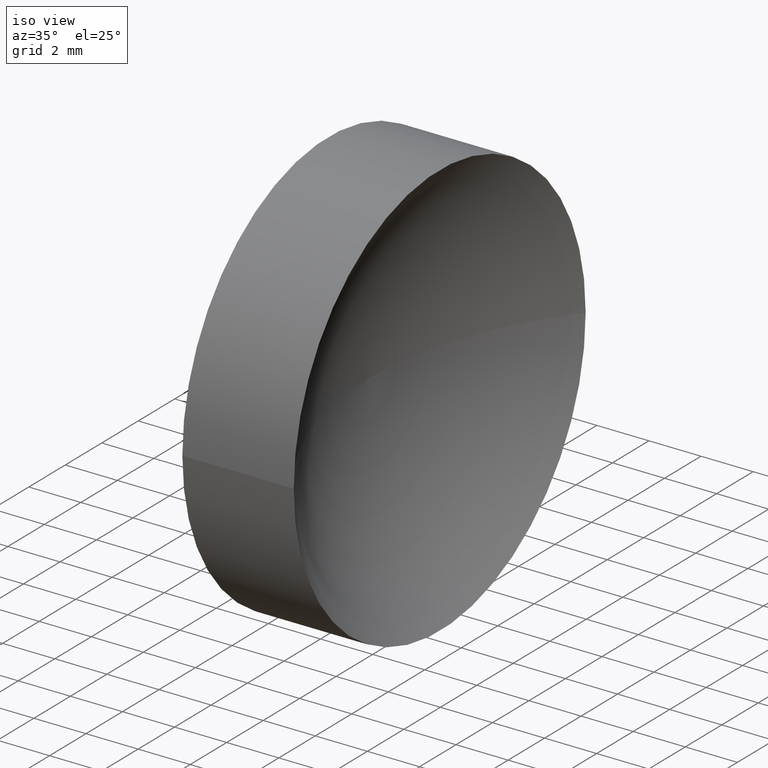
[diagram: clean part render]
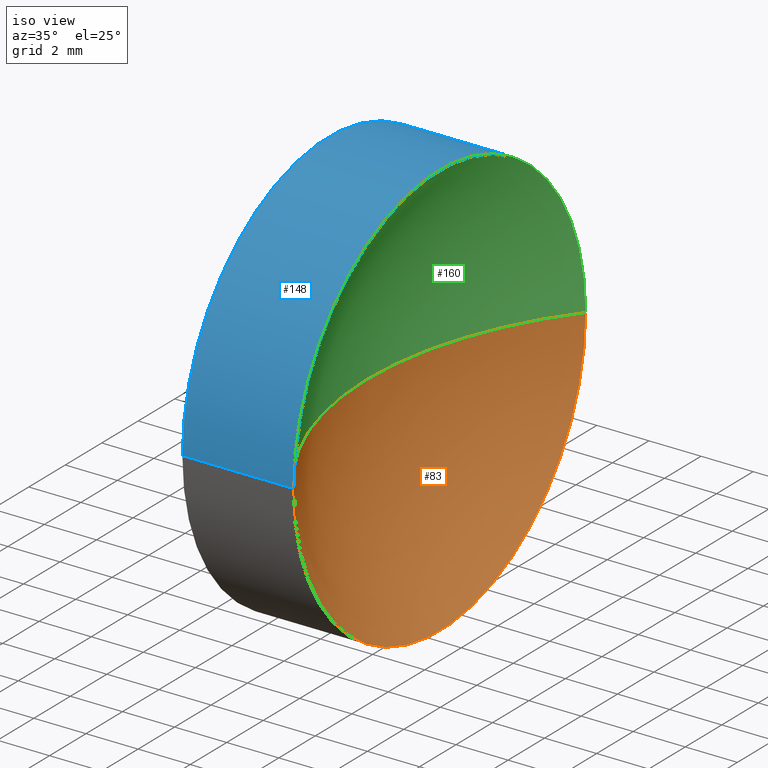
[diagram: same view with three faces highlighted in distinct colors, each labeled with its STEP entity id]
A machine part, iso view with three faces highlighted in distinct colors.
Their STEP definitions:

[orange] entity #83 — the highlighted toroidal blend (fillet) surface has major radius 0.0003 mm and minor (blend) radius 12.91 mm.
#1 = VERTEX_POINT ( 'NONE', #114 ) ;
#3 = AXIS2_PLACEMENT_3D ( 'NONE', #123, #49, #75 ) ;
#20 = EDGE_CURVE ( 'NONE', #32, #73, #47, .T. ) ;
#32 = VERTEX_POINT ( 'NONE', #43 ) ;
#33 = EDGE_CURVE ( 'NONE', #1, #73, #35, .T. ) ;
#35 = CIRCLE ( 'NONE', #119, 12.91000000000000500 ) ;
#40 = ORIENTED_EDGE ( 'NONE', *, *, #33, .F. ) ;
#42 = EDGE_CURVE ( 'NONE', #32, #1, #45, .T. ) ;
#43 = CARTESIAN_POINT ( 'NONE',  ( 49.13169841185359100, 34.06225218280607700, 9.797174393178821700E-016 ) ) ;
#45 = CIRCLE ( 'NONE', #125, 8.000000000000003600 ) ;
#47 = CIRCLE ( 'NONE', #3, 12.91000000000000200 ) ;
#49 = DIRECTION ( 'NONE',  ( -4.969917281268344600E-032, -1.224646799147353200E-016, 1.000000000000000000 ) ) ;
#51 = DIRECTION ( 'NONE',  ( -4.058245434298766700E-016, -1.000000000000000000, 0.0000000000000000000 ) ) ;
#55 = CARTESIAN_POINT ( 'NONE',  ( 59.26444251883568600, 26.06197698197384900, 0.0000000000000000000 ) ) ;
#65 = DIRECTION ( 'NONE',  ( 0.0000000000000000000, -0.0000000000000000000, -1.000000000000000000 ) ) ;
#69 = ORIENTED_EDGE ( 'NONE', *, *, #42, .F. ) ;
#73 = VERTEX_POINT ( 'NONE', #150 ) ;
#75 = DIRECTION ( 'NONE',  ( 0.0000000000000000000, -1.000000000000000000, -1.224646799147353200E-016 ) ) ;
#76 = CARTESIAN_POINT ( 'NONE',  ( 59.26444251883568600, 26.06225218280607700, 0.0000000000000000000 ) ) ;
#83 = ADVANCED_FACE ( 'NONE', ( #116 ), #138, .F. ) ;
#89 = CARTESIAN_POINT ( 'NONE',  ( 49.13169841185359100, 26.06225218280608000, 0.0000000000000000000 ) ) ;
#109 = EDGE_LOOP ( 'NONE', ( #69, #118, #40 ) ) ;
#114 = CARTESIAN_POINT ( 'NONE',  ( 49.13169841185359100, 18.06225218280608000, 0.0000000000000000000 ) ) ;
#116 = FACE_OUTER_BOUND ( 'NONE', #109, .T. ) ;
#117 = AXIS2_PLACEMENT_3D ( 'NONE', #76, #124, #51 ) ;
#118 = ORIENTED_EDGE ( 'NONE', *, *, #20, .T. ) ;
#119 = AXIS2_PLACEMENT_3D ( 'NONE', #55, #65, #154 ) ;
#123 = CARTESIAN_POINT ( 'NONE',  ( 59.26444251883568600, 26.06252738363830400, 3.370238183088406100E-020 ) ) ;
#124 = DIRECTION ( 'NONE',  ( -1.000000000000000000, 4.058245434298766700E-016, -0.0000000000000000000 ) ) ;
#125 = AXIS2_PLACEMENT_3D ( 'NONE', #89, #126, #127 ) ;
#126 = DIRECTION ( 'NONE',  ( -1.000000000000000000, 4.058245434298766700E-016, -0.0000000000000000000 ) ) ;
#127 = DIRECTION ( 'NONE',  ( 0.0000000000000000000, -1.000000000000000000, 0.0000000000000000000 ) ) ;
#138 = TOROIDAL_SURFACE ( 'NONE', #117, 0.0002752008322264752000, 12.91000000000000200 ) ;
#150 = CARTESIAN_POINT ( 'NONE',  ( 46.35444252176889500, 26.06225218280608400, 0.0000000000000000000 ) ) ;
#154 = DIRECTION ( 'NONE',  ( -1.000000000000000000, 0.0000000000000000000, 0.0000000000000000000 ) ) ;

[blue] entity #148 — the highlighted cylindrical surface (partial cylindrical patch) has radius 8 mm, axis along (-1, 0, -0).
#1 = VERTEX_POINT ( 'NONE', #114 ) ;
#12 = VECTOR ( 'NONE', #161, 1000.000000000000000 ) ;
#14 = VERTEX_POINT ( 'NONE', #141 ) ;
#21 = VERTEX_POINT ( 'NONE', #52 ) ;
#22 = LINE ( 'NONE', #102, #64 ) ;
#23 = EDGE_CURVE ( 'NONE', #1, #32, #98, .T. ) ;
#30 = CIRCLE ( 'NONE', #166, 8.000000000000000000 ) ;
#32 = VERTEX_POINT ( 'NONE', #43 ) ;
#43 = CARTESIAN_POINT ( 'NONE',  ( 49.13169841185359100, 34.06225218280607700, 9.797174393178821700E-016 ) ) ;
#50 = EDGE_CURVE ( 'NONE', #1, #21, #22, .T. ) ;
#52 = CARTESIAN_POINT ( 'NONE',  ( 44.85442262622448300, 18.06225218280608400, 0.0000000000000000000 ) ) ;
#59 = AXIS2_PLACEMENT_3D ( 'NONE', #140, #74, #85 ) ;
#61 = DIRECTION ( 'NONE',  ( -1.000000000000000000, 4.058245434298766700E-016, -0.0000000000000000000 ) ) ;
#64 = VECTOR ( 'NONE', #61, 1000.000000000000000 ) ;
#68 = DIRECTION ( 'NONE',  ( -1.000000000000000000, 4.058245434298766700E-016, -0.0000000000000000000 ) ) ;
#71 = AXIS2_PLACEMENT_3D ( 'NONE', #82, #68, #133 ) ;
#74 = DIRECTION ( 'NONE',  ( -1.000000000000000000, 4.058245434298766700E-016, -0.0000000000000000000 ) ) ;
#82 = CARTESIAN_POINT ( 'NONE',  ( 49.13169841185359100, 26.06225218280608000, 0.0000000000000000000 ) ) ;
#85 = DIRECTION ( 'NONE',  ( 0.0000000000000000000, -1.000000000000000000, 0.0000000000000000000 ) ) ;
#87 = DIRECTION ( 'NONE',  ( 0.0000000000000000000, -1.000000000000000000, 0.0000000000000000000 ) ) ;
#91 = EDGE_CURVE ( 'NONE', #21, #14, #30, .T. ) ;
#95 = ORIENTED_EDGE ( 'NONE', *, *, #50, .F. ) ;
#97 = CYLINDRICAL_SURFACE ( 'NONE', #59, 8.000000000000000000 ) ;
#98 = CIRCLE ( 'NONE', #71, 8.000000000000003600 ) ;
#101 = ORIENTED_EDGE ( 'NONE', *, *, #111, .T. ) ;
#102 = CARTESIAN_POINT ( 'NONE',  ( 43.01195023616492100, 18.06225218280608400, 0.0000000000000000000 ) ) ;
#111 = EDGE_CURVE ( 'NONE', #32, #14, #132, .T. ) ;
#112 = ORIENTED_EDGE ( 'NONE', *, *, #23, .T. ) ;
#113 = DIRECTION ( 'NONE',  ( -1.000000000000000000, 4.058245434298766700E-016, -0.0000000000000000000 ) ) ;
#114 = CARTESIAN_POINT ( 'NONE',  ( 49.13169841185359100, 18.06225218280608000, 0.0000000000000000000 ) ) ;
#122 = CARTESIAN_POINT ( 'NONE',  ( 44.85442262622448300, 26.06225218280608400, 0.0000000000000000000 ) ) ;
#130 = EDGE_LOOP ( 'NONE', ( #112, #101, #134, #95 ) ) ;
#132 = LINE ( 'NONE', #149, #12 ) ;
#133 = DIRECTION ( 'NONE',  ( 0.0000000000000000000, -1.000000000000000000, 0.0000000000000000000 ) ) ;
#134 = ORIENTED_EDGE ( 'NONE', *, *, #91, .F. ) ;
#140 = CARTESIAN_POINT ( 'NONE',  ( 43.01195023616492100, 26.06225218280608400, 0.0000000000000000000 ) ) ;
#141 = CARTESIAN_POINT ( 'NONE',  ( 44.85442262622448300, 34.06225218280608400, 9.797174393178827600E-016 ) ) ;
#145 = FACE_OUTER_BOUND ( 'NONE', #130, .T. ) ;
#148 = ADVANCED_FACE ( 'NONE', ( #145 ), #97, .T. ) ;
#149 = CARTESIAN_POINT ( 'NONE',  ( 43.01195023616492100, 34.06225218280608400, 9.797174393178827600E-016 ) ) ;
#161 = DIRECTION ( 'NONE',  ( -1.000000000000000000, 4.058245434298766700E-016, -0.0000000000000000000 ) ) ;
#166 = AXIS2_PLACEMENT_3D ( 'NONE', #122, #113, #87 ) ;

[green] entity #160 — the highlighted toroidal blend (fillet) surface has major radius 0.0003 mm and minor (blend) radius 12.91 mm.
#1 = VERTEX_POINT ( 'NONE', #114 ) ;
#3 = AXIS2_PLACEMENT_3D ( 'NONE', #123, #49, #75 ) ;
#20 = EDGE_CURVE ( 'NONE', #32, #73, #47, .T. ) ;
#23 = EDGE_CURVE ( 'NONE', #1, #32, #98, .T. ) ;
#32 = VERTEX_POINT ( 'NONE', #43 ) ;
#33 = EDGE_CURVE ( 'NONE', #1, #73, #35, .T. ) ;
#35 = CIRCLE ( 'NONE', #119, 12.91000000000000500 ) ;
#43 = CARTESIAN_POINT ( 'NONE',  ( 49.13169841185359100, 34.06225218280607700, 9.797174393178821700E-016 ) ) ;
#47 = CIRCLE ( 'NONE', #3, 12.91000000000000200 ) ;
#49 = DIRECTION ( 'NONE',  ( -4.969917281268344600E-032, -1.224646799147353200E-016, 1.000000000000000000 ) ) ;
#55 = CARTESIAN_POINT ( 'NONE',  ( 59.26444251883568600, 26.06197698197384900, 0.0000000000000000000 ) ) ;
#60 = ORIENTED_EDGE ( 'NONE', *, *, #20, .F. ) ;
#65 = DIRECTION ( 'NONE',  ( 0.0000000000000000000, -0.0000000000000000000, -1.000000000000000000 ) ) ;
#68 = DIRECTION ( 'NONE',  ( -1.000000000000000000, 4.058245434298766700E-016, -0.0000000000000000000 ) ) ;
#71 = AXIS2_PLACEMENT_3D ( 'NONE', #82, #68, #133 ) ;
#73 = VERTEX_POINT ( 'NONE', #150 ) ;
#75 = DIRECTION ( 'NONE',  ( 0.0000000000000000000, -1.000000000000000000, -1.224646799147353200E-016 ) ) ;
#80 = CARTESIAN_POINT ( 'NONE',  ( 59.26444251883568600, 26.06225218280607700, 0.0000000000000000000 ) ) ;
#81 = EDGE_LOOP ( 'NONE', ( #60, #147, #105 ) ) ;
#82 = CARTESIAN_POINT ( 'NONE',  ( 49.13169841185359100, 26.06225218280608000, 0.0000000000000000000 ) ) ;
#88 = TOROIDAL_SURFACE ( 'NONE', #144, 0.0002752008322264752000, 12.91000000000000200 ) ;
#93 = DIRECTION ( 'NONE',  ( -1.000000000000000000, 4.058245434298766700E-016, -0.0000000000000000000 ) ) ;
#98 = CIRCLE ( 'NONE', #71, 8.000000000000003600 ) ;
#103 = FACE_OUTER_BOUND ( 'NONE', #81, .T. ) ;
#105 = ORIENTED_EDGE ( 'NONE', *, *, #33, .T. ) ;
#108 = DIRECTION ( 'NONE',  ( -4.058245434298766700E-016, -1.000000000000000000, 0.0000000000000000000 ) ) ;
#114 = CARTESIAN_POINT ( 'NONE',  ( 49.13169841185359100, 18.06225218280608000, 0.0000000000000000000 ) ) ;
#119 = AXIS2_PLACEMENT_3D ( 'NONE', #55, #65, #154 ) ;
#123 = CARTESIAN_POINT ( 'NONE',  ( 59.26444251883568600, 26.06252738363830400, 3.370238183088406100E-020 ) ) ;
#133 = DIRECTION ( 'NONE',  ( 0.0000000000000000000, -1.000000000000000000, 0.0000000000000000000 ) ) ;
#144 = AXIS2_PLACEMENT_3D ( 'NONE', #80, #93, #108 ) ;
#147 = ORIENTED_EDGE ( 'NONE', *, *, #23, .F. ) ;
#150 = CARTESIAN_POINT ( 'NONE',  ( 46.35444252176889500, 26.06225218280608400, 0.0000000000000000000 ) ) ;
#154 = DIRECTION ( 'NONE',  ( -1.000000000000000000, 0.0000000000000000000, 0.0000000000000000000 ) ) ;
#160 = ADVANCED_FACE ( 'NONE', ( #103 ), #88, .F. ) ;